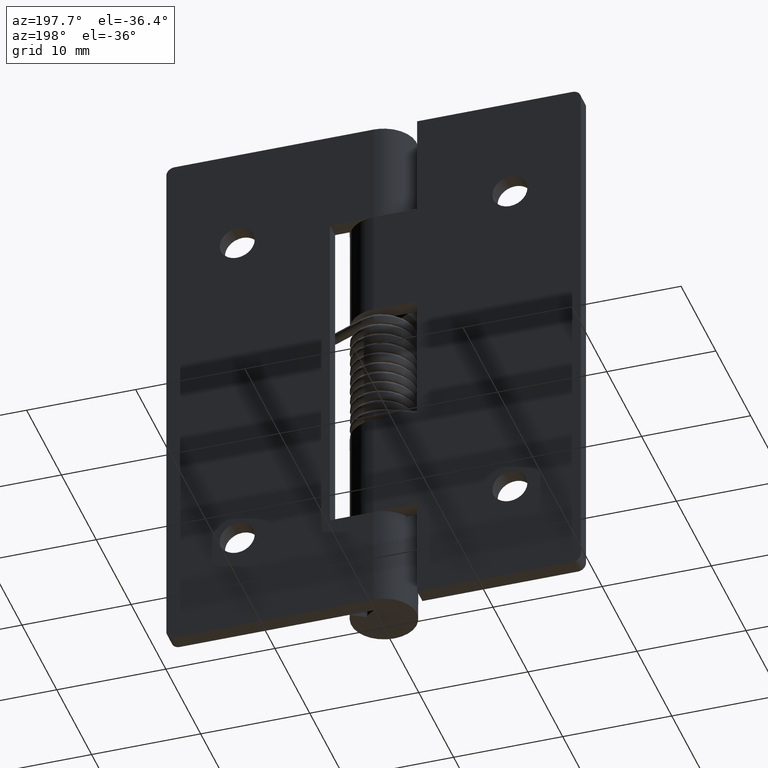
[diagram: clean part render]
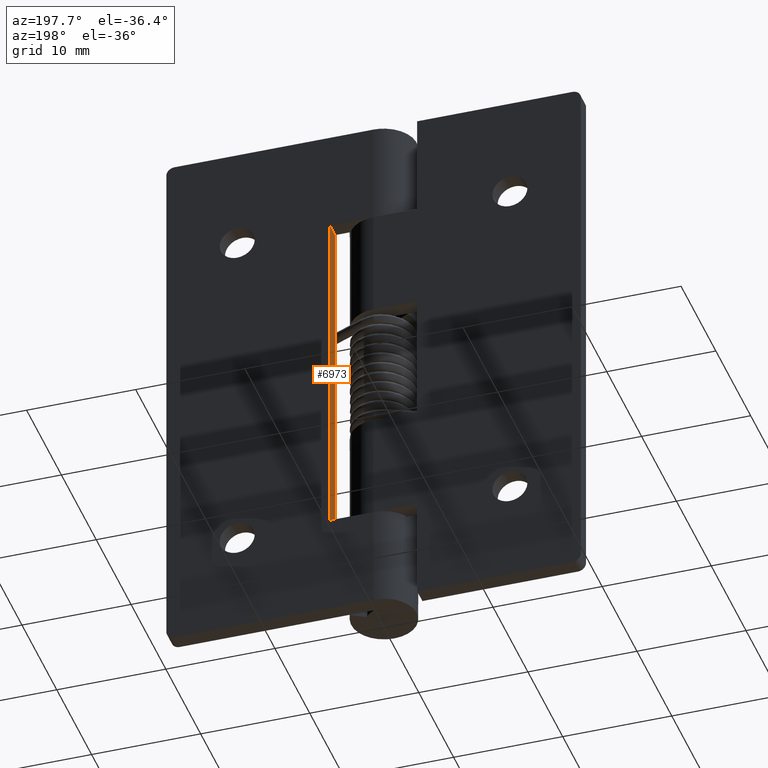
[diagram: same view with one face highlighted and labeled with its STEP entity id]
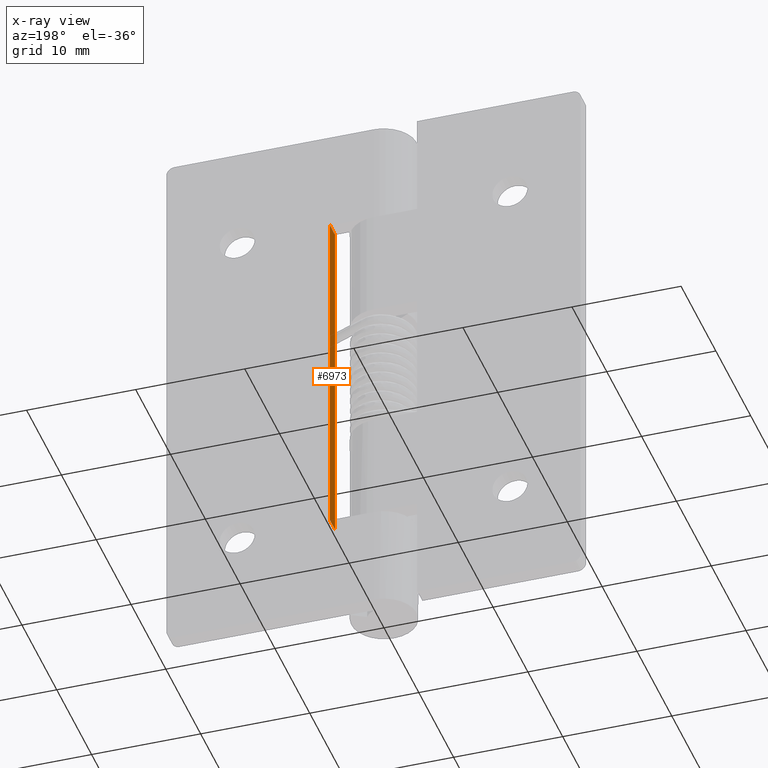
[diagram: x-ray of the same camera — body ghosted, the highlighted face saturated]
A machine part, auxiliary view. The second image highlights one B-rep face of the part: STEP entity #6973.
The next image is the same camera in x-ray: the body ghosted, the highlighted face saturated — about 0% of this face is hidden behind the body in this view.
In plain terms, the highlighted face is a freeform B-spline surface patch.
Its self-contained STEP definition (entity closure, byte-faithful):
#6805=CARTESIAN_POINT('',(4.0,1.499999999999946,9.499999999999801));
#6806=VERTEX_POINT('',#6805);
#6812=CARTESIAN_POINT('',(4.0,3.0,9.499999999999801));
#6813=VERTEX_POINT('',#6812);
#6814=CARTESIAN_POINT('',(4.0,3.0,9.499999999999801));
#6815=CARTESIAN_POINT('',(4.0,1.499999999999946,9.499999999999801));
#6816=QUASI_UNIFORM_CURVE('',1,(#6814,#6815),.UNSPECIFIED.,.F.,.U.);
#6817=EDGE_CURVE('',#6813,#6806,#6816,.T.);
#6904=CARTESIAN_POINT('',(4.0,3.0,41.500000000000000));
#6905=VERTEX_POINT('',#6904);
#6911=CARTESIAN_POINT('',(4.0,1.499999999999946,41.500000000000000));
#6912=VERTEX_POINT('',#6911);
#6913=CARTESIAN_POINT('',(4.0,3.0,41.500000000000000));
#6914=CARTESIAN_POINT('',(4.0,1.499999999999946,41.500000000000000));
#6915=QUASI_UNIFORM_CURVE('',1,(#6913,#6914),.UNSPECIFIED.,.F.,.U.);
#6916=EDGE_CURVE('',#6905,#6912,#6915,.T.);
#6954=CARTESIAN_POINT('',(4.0,1.425075002907234,7.901600062021999));
#6955=CARTESIAN_POINT('',(4.0,1.425075002907234,43.098400796284693));
#6956=CARTESIAN_POINT('',(4.0,3.074925037325848,7.901600062021999));
#6957=CARTESIAN_POINT('',(4.0,3.074925037325848,43.098400796284693));
#6958=B_SPLINE_SURFACE_WITH_KNOTS('',1,1,((#6954,#6956),(#6955,#6957)),.UNSPECIFIED.,.F.,.F.,.U.,(2,2),(2,2),(0.0,35.196800734262688),(0.041708334948495,0.958291687403247),.UNSPECIFIED.);
#6959=CARTESIAN_POINT('',(4.0,1.499999999999946,9.499999999999801));
#6960=CARTESIAN_POINT('',(4.0,1.499999999999946,41.500000000000000));
#6961=QUASI_UNIFORM_CURVE('',1,(#6959,#6960),.UNSPECIFIED.,.F.,.U.);
#6962=EDGE_CURVE('',#6806,#6912,#6961,.T.);
#6963=ORIENTED_EDGE('',*,*,#6962,.T.);
#6964=ORIENTED_EDGE('',*,*,#6916,.F.);
#6965=CARTESIAN_POINT('',(4.0,3.0,41.500000000000000));
#6966=CARTESIAN_POINT('',(4.0,3.0,9.499999999999801));
#6967=QUASI_UNIFORM_CURVE('',1,(#6965,#6966),.UNSPECIFIED.,.F.,.U.);
#6968=EDGE_CURVE('',#6905,#6813,#6967,.T.);
#6969=ORIENTED_EDGE('',*,*,#6968,.T.);
#6970=ORIENTED_EDGE('',*,*,#6817,.T.);
#6971=EDGE_LOOP('',(#6963,#6964,#6969,#6970));
#6972=FACE_OUTER_BOUND('',#6971,.T.);
#6973=ADVANCED_FACE('',(#6972),#6958,.T.);